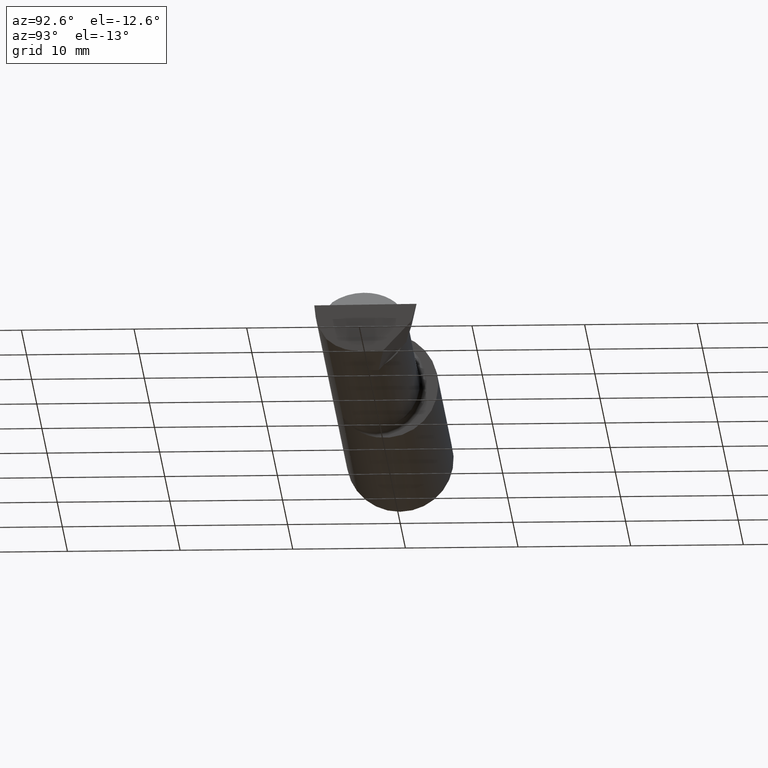
[diagram: clean part render]
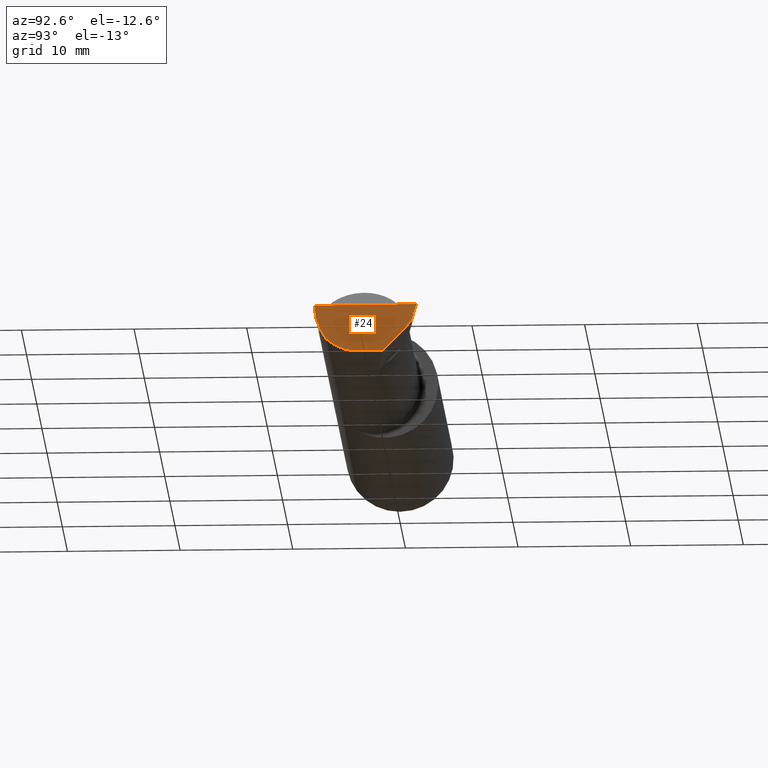
[diagram: same view with one face highlighted and labeled with its STEP entity id]
A machine part, auxiliary view. The second image highlights one B-rep face of the part: STEP entity #24.
In plain terms, the highlighted planar face has unit normal (-0.9922, 0.026, 0.1219).
Its self-contained STEP definition (entity closure, byte-faithful):
#9 = VERTEX_POINT ( 'NONE', #108 ) ;
#12 = VERTEX_POINT ( 'NONE', #396 ) ;
#24 = ADVANCED_FACE ( 'NONE', ( #454 ), #245, .F. ) ;
#57 = VERTEX_POINT ( 'NONE', #347 ) ;
#58 = CARTESIAN_POINT ( 'NONE',  ( 2.492483720199198949, 0.1538199878950242405, -0.05760614975163728946 ) ) ;
#93 = EDGE_CURVE ( 'NONE', #9, #57, #370, .T. ) ;
#108 = CARTESIAN_POINT ( 'NONE',  ( 2.477259974483429161, 0.05296767626088545039, -0.1600499999999999701 ) ) ;
#110 = DIRECTION ( 'NONE',  ( 0.1240019227989976880, 0.3022330132596679486, 0.9451342385281217284 ) ) ;
#119 = CARTESIAN_POINT ( 'NONE',  ( 2.474646882977779683, -0.1156304438478839708, -0.1453804992321580114 ) ) ;
#123 = EDGE_CURVE ( 'NONE', #227, #186, #207, .T. ) ;
#124 = CARTESIAN_POINT ( 'NONE',  ( 2.477223734188807924, -0.1454917112299468074, -0.1180346748349050540 ) ) ;
#132 = ORIENTED_EDGE ( 'NONE', *, *, #93, .F. ) ;
#136 = VECTOR ( 'NONE', #242, 39.37007874015748854 ) ;
#141 = EDGE_CURVE ( 'NONE', #227, #57, #299, .T. ) ;
#183 = EDGE_CURVE ( 'NONE', #378, #12, #215, .T. ) ;
#186 = VERTEX_POINT ( 'NONE', #321 ) ;
#204 = LINE ( 'NONE', #58, #446 ) ;
#207 =( BOUNDED_CURVE ( )  B_SPLINE_CURVE ( 3, ( #363, #558, #318, #315 ),
 .UNSPECIFIED., .F., .T. ) 
 B_SPLINE_CURVE_WITH_KNOTS ( ( 4, 4 ),
 ( 0.6791649766273006872, 1.360746882514497491 ),
 .UNSPECIFIED. ) 
 CURVE ( )  GEOMETRIC_REPRESENTATION_ITEM ( )  RATIONAL_B_SPLINE_CURVE ( ( 1.000000000000000000, 0.9616603987079550553, 0.9616603987079550553, 1.000000000000000000 ) ) 
 REPRESENTATION_ITEM ( '' )  );
#215 = LINE ( 'NONE', #415, #476 ) ;
#227 = VERTEX_POINT ( 'NONE', #236 ) ;
#236 = CARTESIAN_POINT ( 'NONE',  ( 2.477223734188807924, -0.1454917112299468074, -0.1180346748349050540 ) ) ;
#242 = DIRECTION ( 'NONE',  ( 0.02617694830791474428, 0.9996573249755561497, -2.665804247648019634E-18 ) ) ;
#245 = PLANE ( 'NONE',  #351 ) ;
#249 = CARTESIAN_POINT ( 'NONE',  ( 2.472657716785286119, -0.1026153499216721221, -0.1643501480114536173 ) ) ;
#272 = CARTESIAN_POINT ( 'NONE',  ( 2.474910817315467693, -0.03674301662998678830, -0.1600499999999999701 ) ) ;
#299 =( BOUNDED_CURVE ( )  B_SPLINE_CURVE ( 3, ( #124, #119, #568, #562 ),
 .UNSPECIFIED., .F., .T. ) 
 B_SPLINE_CURVE_WITH_KNOTS ( ( 4, 4 ),
 ( 5.751779107031783411, 6.493234751459985965 ),
 .UNSPECIFIED. ) 
 CURVE ( )  GEOMETRIC_REPRESENTATION_ITEM ( )  RATIONAL_B_SPLINE_CURVE ( ( 1.000000000000000000, 0.9547092712975350226, 0.9547092712975350226, 1.000000000000000000 ) ) 
 REPRESENTATION_ITEM ( '' )  );
#312 = VECTOR ( 'NONE', #410, 39.37007874015748854 ) ;
#315 = CARTESIAN_POINT ( 'NONE',  ( 2.490625440078237940, -0.1873499999999999888, 6.926778495256700803E-17 ) ) ;
#318 = CARTESIAN_POINT ( 'NONE',  ( 2.485293537526806151, -0.1873500000000000443, -0.04340998088356413931 ) ) ;
#321 = CARTESIAN_POINT ( 'NONE',  ( 2.490625440078237940, -0.1873499999999999888, 6.926778495256700803E-17 ) ) ;
#340 = DIRECTION ( 'NONE',  ( 0.1219104985253360862, 0.000000000000000000, 0.9925410975618610410 ) ) ;
#345 = EDGE_CURVE ( 'NONE', #186, #12, #439, .T. ) ;
#347 = CARTESIAN_POINT ( 'NONE',  ( 2.474893613600468445, -0.03739999999999999575, -0.1600499999999999701 ) ) ;
#351 = AXIS2_PLACEMENT_3D ( 'NONE', #249, #443, #340 ) ;
#363 = CARTESIAN_POINT ( 'NONE',  ( 2.477223734188807924, -0.1454917112299468074, -0.1180346748349050540 ) ) ;
#370 = LINE ( 'NONE', #272, #312 ) ;
#378 = VERTEX_POINT ( 'NONE', #444 ) ;
#396 = CARTESIAN_POINT ( 'NONE',  ( 2.500000000000034195, 0.1706500000000318318, 9.292204874308774392E-14 ) ) ;
#410 = DIRECTION ( 'NONE',  ( -0.02617694830791474428, -0.9996573249755561497, 0.000000000000000000 ) ) ;
#411 = ORIENTED_EDGE ( 'NONE', *, *, #123, .F. ) ;
#415 = CARTESIAN_POINT ( 'NONE',  ( 2.500188977433833504, 0.1711105994646693607, 0.001440373173035001042 ) ) ;
#438 = ORIENTED_EDGE ( 'NONE', *, *, #183, .T. ) ;
#439 = LINE ( 'NONE', #544, #136 ) ;
#443 = DIRECTION ( 'NONE',  ( -0.9922060308645402893, 0.02598182930473442662, 0.1218693434052005448 ) ) ;
#444 = CARTESIAN_POINT ( 'NONE',  ( 2.492127980275578913, 0.1514633278254541582, -0.05999999999999998390 ) ) ;
#446 = VECTOR ( 'NONE', #502, 39.37007874015748143 ) ;
#454 = FACE_OUTER_BOUND ( 'NONE', #603, .T. ) ;
#458 = ORIENTED_EDGE ( 'NONE', *, *, #345, .F. ) ;
#476 = VECTOR ( 'NONE', #110, 39.37007874015748854 ) ;
#502 = DIRECTION ( 'NONE',  ( 0.1053106618242479892, 0.6976485211320153645, 0.7086580314005131997 ) ) ;
#544 = CARTESIAN_POINT ( 'NONE',  ( 2.488992440003207296, -0.2497117568972554158, 6.943408617627041469E-17 ) ) ;
#558 = CARTESIAN_POINT ( 'NONE',  ( 2.480648201915109929, -0.1728409665178088084, -0.08432347972837167527 ) ) ;
#562 = CARTESIAN_POINT ( 'NONE',  ( 2.474893613600468445, -0.03739999999999999575, -0.1600499999999999701 ) ) ;
#568 = CARTESIAN_POINT ( 'NONE',  ( 2.473833329693936101, -0.07789060880782665286, -0.1600499999999999423 ) ) ;
#598 = EDGE_CURVE ( 'NONE', #9, #378, #204, .T. ) ;
#603 = EDGE_LOOP ( 'NONE', ( #622, #132, #615, #438, #458, #411 ) ) ;
#615 = ORIENTED_EDGE ( 'NONE', *, *, #598, .T. ) ;
#622 = ORIENTED_EDGE ( 'NONE', *, *, #141, .T. ) ;